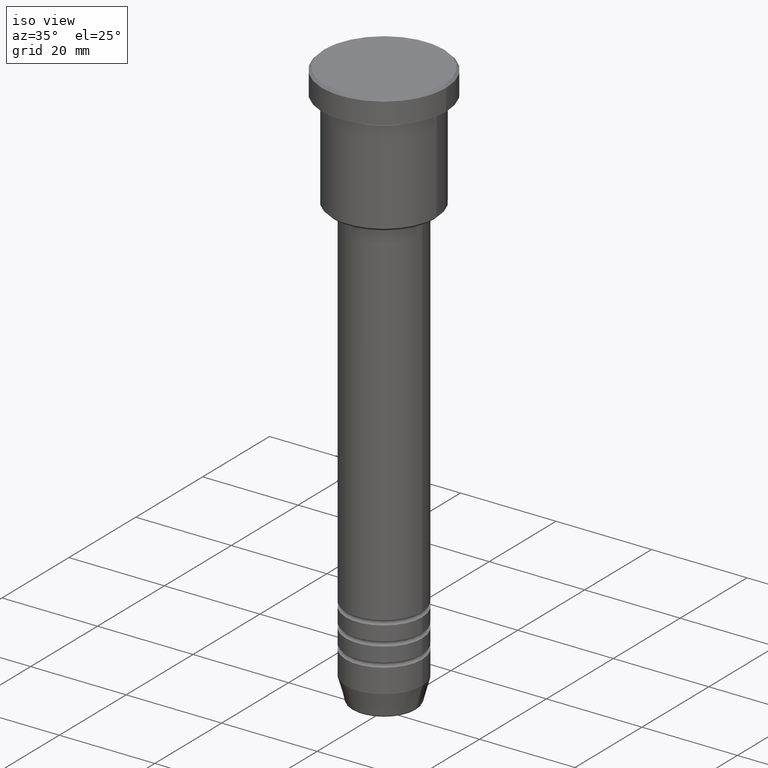
[diagram: clean part render]
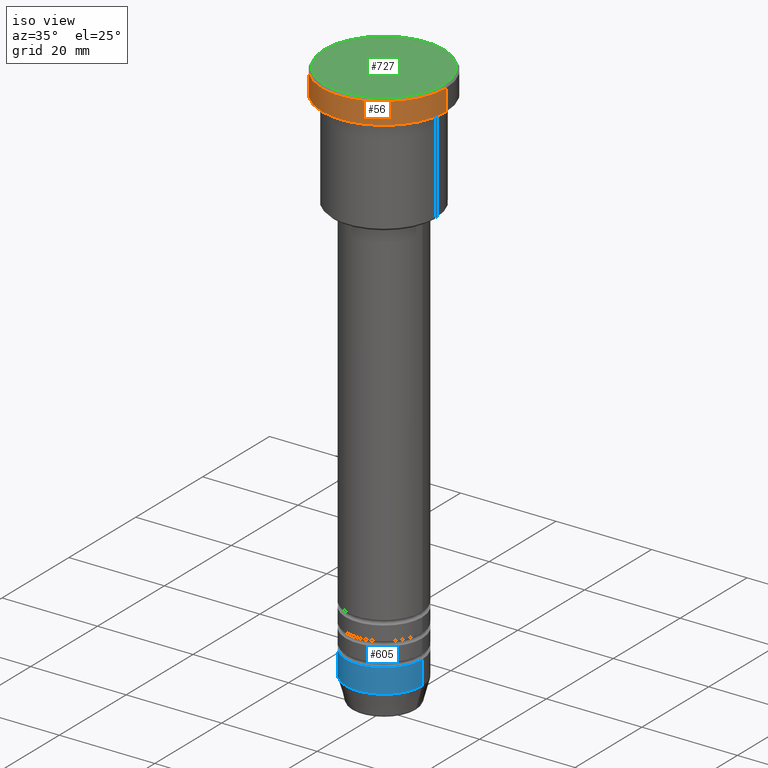
[diagram: same view with three faces highlighted in distinct colors, each labeled with its STEP entity id]
A machine part, iso view with three faces highlighted in distinct colors.
Their STEP definitions:

[orange] entity #56 — the highlighted cylindrical surface (partial cylindrical patch) has radius 13 mm, axis along (-0, -0, 1).
#2 = LINE ( 'NONE', #379, #997 ) ;
#3 = ORIENTED_EDGE ( 'NONE', *, *, #1155, .T. ) ;
#43 = VECTOR ( 'NONE', #292, 1000.000000000000000 ) ;
#52 = AXIS2_PLACEMENT_3D ( 'NONE', #804, #1167, #531 ) ;
#56 = ADVANCED_FACE ( 'NONE', ( #897 ), #435, .T. ) ;
#63 = DIRECTION ( 'NONE',  ( 0.000000000000000000, 0.000000000000000000, -1.000000000000000000 ) ) ;
#157 = EDGE_CURVE ( 'NONE', #928, #394, #1088, .T. ) ;
#292 = DIRECTION ( 'NONE',  ( -0.000000000000000000, -0.000000000000000000, 1.000000000000000000 ) ) ;
#303 = LINE ( 'NONE', #502, #43 ) ;
#379 = CARTESIAN_POINT ( 'NONE',  ( -13.00000000000000000, 1.592040838891559095E-15, 0.000000000000000000 ) ) ;
#394 = VERTEX_POINT ( 'NONE', #856 ) ;
#412 = DIRECTION ( 'NONE',  ( 1.000000000000000000, 0.000000000000000000, 0.000000000000000000 ) ) ;
#413 = VERTEX_POINT ( 'NONE', #877 ) ;
#435 = CYLINDRICAL_SURFACE ( 'NONE', #52, 13.00000000000000000 ) ;
#452 = DIRECTION ( 'NONE',  ( -0.000000000000000000, -0.000000000000000000, 1.000000000000000000 ) ) ;
#502 = CARTESIAN_POINT ( 'NONE',  ( 13.00000000000000000, 0.000000000000000000, 0.000000000000000000 ) ) ;
#522 = CARTESIAN_POINT ( 'NONE',  ( 0.000000000000000000, 0.000000000000000000, -0.5000000000000073275 ) ) ;
#531 = DIRECTION ( 'NONE',  ( 1.000000000000000000, 0.000000000000000000, 0.000000000000000000 ) ) ;
#535 = CIRCLE ( 'NONE', #998, 13.00000000000000000 ) ;
#626 = DIRECTION ( 'NONE',  ( 1.000000000000000000, 0.000000000000000000, 0.000000000000000000 ) ) ;
#665 = CARTESIAN_POINT ( 'NONE',  ( 0.000000000000000000, 0.000000000000000000, -5.000000000000000000 ) ) ;
#675 = CARTESIAN_POINT ( 'NONE',  ( -13.00000000000000000, 1.592040838891559095E-15, -5.000000000000000000 ) ) ;
#712 = ORIENTED_EDGE ( 'NONE', *, *, #1127, .T. ) ;
#804 = CARTESIAN_POINT ( 'NONE',  ( 0.000000000000000000, 0.000000000000000000, 0.000000000000000000 ) ) ;
#856 = CARTESIAN_POINT ( 'NONE',  ( -13.00000000000000000, 1.592040838891559095E-15, -0.5000000000000073275 ) ) ;
#877 = CARTESIAN_POINT ( 'NONE',  ( 13.00000000000000000, 0.000000000000000000, -5.000000000000000000 ) ) ;
#897 = FACE_OUTER_BOUND ( 'NONE', #918, .T. ) ;
#918 = EDGE_LOOP ( 'NONE', ( #1105, #3, #712, #973 ) ) ;
#928 = VERTEX_POINT ( 'NONE', #993 ) ;
#973 = ORIENTED_EDGE ( 'NONE', *, *, #157, .T. ) ;
#981 = AXIS2_PLACEMENT_3D ( 'NONE', #522, #63, #626 ) ;
#993 = CARTESIAN_POINT ( 'NONE',  ( 13.00000000000000000, 0.000000000000000000, -0.5000000000000073275 ) ) ;
#997 = VECTOR ( 'NONE', #452, 1000.000000000000000 ) ;
#998 = AXIS2_PLACEMENT_3D ( 'NONE', #665, #1025, #412 ) ;
#1025 = DIRECTION ( 'NONE',  ( -0.000000000000000000, -0.000000000000000000, 1.000000000000000000 ) ) ;
#1047 = EDGE_CURVE ( 'NONE', #1106, #394, #2, .T. ) ;
#1088 = CIRCLE ( 'NONE', #981, 13.00000000000000000 ) ;
#1105 = ORIENTED_EDGE ( 'NONE', *, *, #1047, .F. ) ;
#1106 = VERTEX_POINT ( 'NONE', #675 ) ;
#1127 = EDGE_CURVE ( 'NONE', #413, #928, #303, .T. ) ;
#1155 = EDGE_CURVE ( 'NONE', #1106, #413, #535, .T. ) ;
#1167 = DIRECTION ( 'NONE',  ( -0.000000000000000000, -0.000000000000000000, 1.000000000000000000 ) ) ;

[blue] entity #605 — the highlighted cylindrical surface (partial cylindrical patch) has radius 8 mm, axis along (-0, -0, 1).
#8 = DIRECTION ( 'NONE',  ( 1.000000000000000000, 0.000000000000000000, 0.000000000000000000 ) ) ;
#15 = DIRECTION ( 'NONE',  ( -0.000000000000000000, -0.000000000000000000, 1.000000000000000000 ) ) ;
#28 = VERTEX_POINT ( 'NONE', #66 ) ;
#66 = CARTESIAN_POINT ( 'NONE',  ( 8.000000000000000000, 0.000000000000000000, -114.9999999999999858 ) ) ;
#103 = EDGE_LOOP ( 'NONE', ( #760, #1043, #321, #632 ) ) ;
#108 = CARTESIAN_POINT ( 'NONE',  ( 0.000000000000000000, 0.000000000000000000, 0.000000000000000000 ) ) ;
#134 = AXIS2_PLACEMENT_3D ( 'NONE', #108, #467, #1001 ) ;
#142 = DIRECTION ( 'NONE',  ( -0.000000000000000000, -0.000000000000000000, 1.000000000000000000 ) ) ;
#246 = EDGE_CURVE ( 'NONE', #315, #28, #463, .T. ) ;
#262 = CIRCLE ( 'NONE', #1163, 8.000000000000000000 ) ;
#315 = VERTEX_POINT ( 'NONE', #406 ) ;
#321 = ORIENTED_EDGE ( 'NONE', *, *, #362, .T. ) ;
#362 = EDGE_CURVE ( 'NONE', #28, #874, #673, .T. ) ;
#383 = AXIS2_PLACEMENT_3D ( 'NONE', #1018, #15, #859 ) ;
#406 = CARTESIAN_POINT ( 'NONE',  ( -8.000000000000000000, 9.797174393178825657E-16, -114.9999999999999858 ) ) ;
#434 = EDGE_CURVE ( 'NONE', #315, #834, #701, .T. ) ;
#463 = CIRCLE ( 'NONE', #383, 8.000000000000000000 ) ;
#467 = DIRECTION ( 'NONE',  ( -0.000000000000000000, -0.000000000000000000, 1.000000000000000000 ) ) ;
#484 = VECTOR ( 'NONE', #1030, 1000.000000000000000 ) ;
#497 = VECTOR ( 'NONE', #142, 1000.000000000000000 ) ;
#506 = CARTESIAN_POINT ( 'NONE',  ( 8.000000000000000000, 0.000000000000000000, -109.9999999999999858 ) ) ;
#605 = ADVANCED_FACE ( 'NONE', ( #839 ), #1099, .T. ) ;
#632 = ORIENTED_EDGE ( 'NONE', *, *, #942, .F. ) ;
#673 = LINE ( 'NONE', #1022, #484 ) ;
#690 = CARTESIAN_POINT ( 'NONE',  ( -8.000000000000000000, 9.797174393178825657E-16, -109.9999999999999858 ) ) ;
#701 = LINE ( 'NONE', #969, #497 ) ;
#738 = DIRECTION ( 'NONE',  ( -0.000000000000000000, -0.000000000000000000, 1.000000000000000000 ) ) ;
#760 = ORIENTED_EDGE ( 'NONE', *, *, #434, .F. ) ;
#834 = VERTEX_POINT ( 'NONE', #690 ) ;
#839 = FACE_OUTER_BOUND ( 'NONE', #103, .T. ) ;
#859 = DIRECTION ( 'NONE',  ( 1.000000000000000000, 0.000000000000000000, 0.000000000000000000 ) ) ;
#874 = VERTEX_POINT ( 'NONE', #506 ) ;
#942 = EDGE_CURVE ( 'NONE', #834, #874, #262, .T. ) ;
#969 = CARTESIAN_POINT ( 'NONE',  ( -8.000000000000000000, 9.797174393178825657E-16, 0.000000000000000000 ) ) ;
#1001 = DIRECTION ( 'NONE',  ( 1.000000000000000000, 0.000000000000000000, 0.000000000000000000 ) ) ;
#1018 = CARTESIAN_POINT ( 'NONE',  ( 0.000000000000000000, 0.000000000000000000, -114.9999999999999858 ) ) ;
#1022 = CARTESIAN_POINT ( 'NONE',  ( 8.000000000000000000, 0.000000000000000000, 0.000000000000000000 ) ) ;
#1030 = DIRECTION ( 'NONE',  ( -0.000000000000000000, -0.000000000000000000, 1.000000000000000000 ) ) ;
#1043 = ORIENTED_EDGE ( 'NONE', *, *, #246, .T. ) ;
#1099 = CYLINDRICAL_SURFACE ( 'NONE', #134, 8.000000000000000000 ) ;
#1163 = AXIS2_PLACEMENT_3D ( 'NONE', #1175, #738, #8 ) ;
#1175 = CARTESIAN_POINT ( 'NONE',  ( 0.000000000000000000, 0.000000000000000000, -109.9999999999999858 ) ) ;

[green] entity #727 — the highlighted planar face has unit normal (0, -0, 1).
#4 = DIRECTION ( 'NONE',  ( 1.000000000000000000, 0.000000000000000000, 0.000000000000000000 ) ) ;
#23 = AXIS2_PLACEMENT_3D ( 'NONE', #597, #107, #225 ) ;
#74 = DIRECTION ( 'NONE',  ( -0.000000000000000000, -0.000000000000000000, 1.000000000000000000 ) ) ;
#107 = DIRECTION ( 'NONE',  ( -0.000000000000000000, -0.000000000000000000, 1.000000000000000000 ) ) ;
#204 = CARTESIAN_POINT ( 'NONE',  ( 0.000000000000000000, 0.000000000000000000, 0.000000000000000000 ) ) ;
#225 = DIRECTION ( 'NONE',  ( 1.000000000000000000, 0.000000000000000000, 0.000000000000000000 ) ) ;
#343 = CIRCLE ( 'NONE', #511, 12.49999999999999645 ) ;
#444 = DIRECTION ( 'NONE',  ( 1.000000000000000000, 0.000000000000000000, 0.000000000000000000 ) ) ;
#469 = DIRECTION ( 'NONE',  ( 0.000000000000000000, -0.000000000000000000, 1.000000000000000000 ) ) ;
#501 = CIRCLE ( 'NONE', #23, 12.49999999999999645 ) ;
#511 = AXIS2_PLACEMENT_3D ( 'NONE', #899, #74, #444 ) ;
#585 = EDGE_CURVE ( 'NONE', #1126, #941, #343, .T. ) ;
#587 = CARTESIAN_POINT ( 'NONE',  ( 12.49999999999999645, 1.561424668912875111E-15, 0.000000000000000000 ) ) ;
#597 = CARTESIAN_POINT ( 'NONE',  ( 0.000000000000000000, 0.000000000000000000, 0.000000000000000000 ) ) ;
#645 = PLANE ( 'NONE',  #977 ) ;
#648 = CARTESIAN_POINT ( 'NONE',  ( -12.49999999999999645, 0.000000000000000000, 0.000000000000000000 ) ) ;
#727 = ADVANCED_FACE ( 'NONE', ( #729 ), #645, .T. ) ;
#729 = FACE_OUTER_BOUND ( 'NONE', #1068, .T. ) ;
#899 = CARTESIAN_POINT ( 'NONE',  ( 0.000000000000000000, 0.000000000000000000, 0.000000000000000000 ) ) ;
#912 = ORIENTED_EDGE ( 'NONE', *, *, #585, .T. ) ;
#941 = VERTEX_POINT ( 'NONE', #648 ) ;
#977 = AXIS2_PLACEMENT_3D ( 'NONE', #204, #469, #4 ) ;
#1068 = EDGE_LOOP ( 'NONE', ( #1140, #912 ) ) ;
#1077 = EDGE_CURVE ( 'NONE', #941, #1126, #501, .T. ) ;
#1126 = VERTEX_POINT ( 'NONE', #587 ) ;
#1140 = ORIENTED_EDGE ( 'NONE', *, *, #1077, .T. ) ;